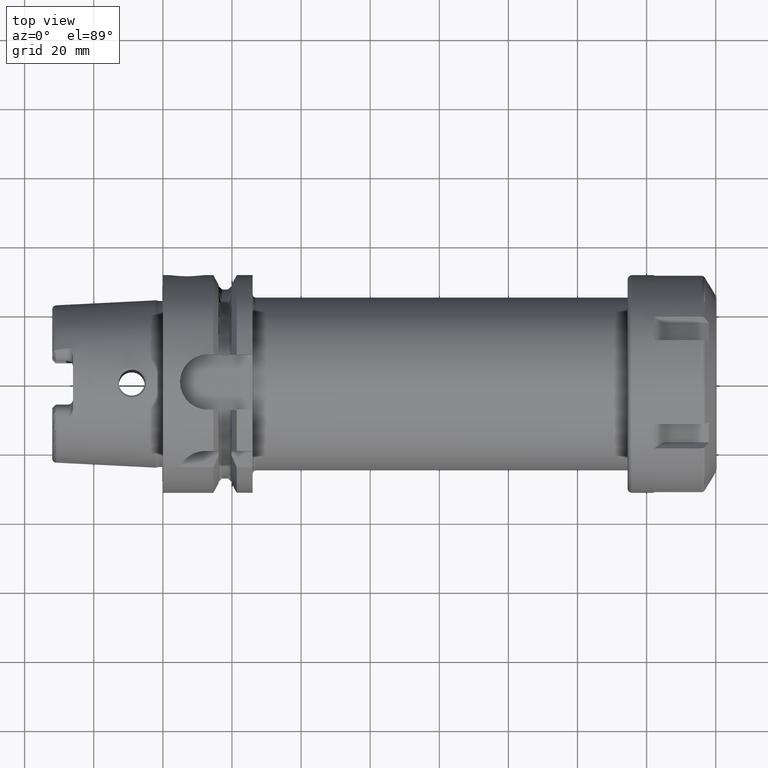
[diagram: clean part render]
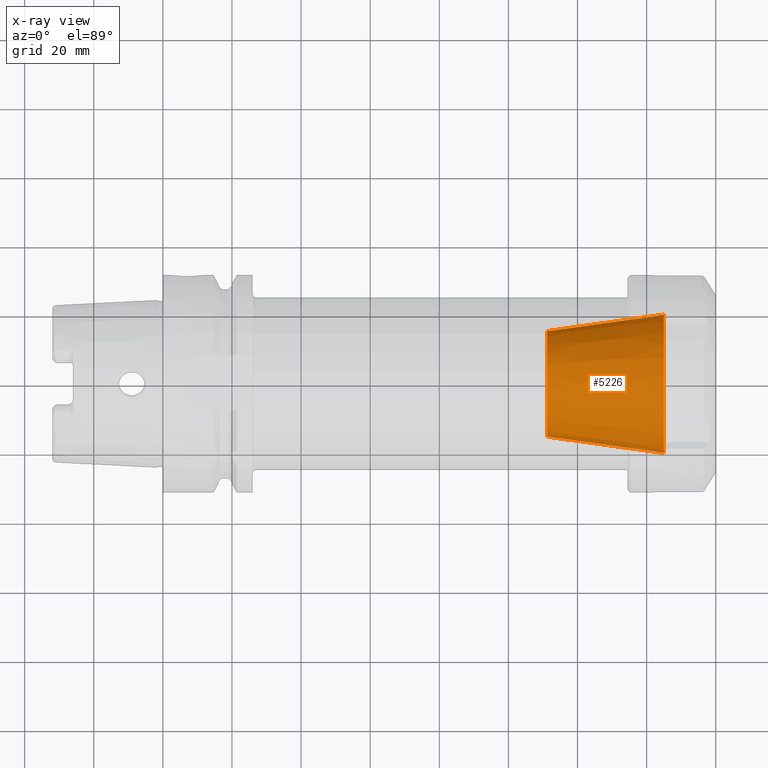
[diagram: x-ray — body ghosted, one internal face saturated and labeled with its STEP entity id]
A machine part, top view, then the same camera in x-ray: the body is ghosted and one INTERNAL B-rep face — a face not visible from any outside direction — is saturated and labeled: STEP entity #5226.
In plain terms, the highlighted conical surface has half-angle 8 deg.
Its self-contained STEP definition (entity closure, byte-faithful):
#1994=CARTESIAN_POINT('',(1.45E2,0.E0,0.E0));
#1995=DIRECTION('',(1.E0,0.E0,0.E0));
#1996=DIRECTION('',(0.E0,1.E0,0.E0));
#1997=AXIS2_PLACEMENT_3D('',#1994,#1995,#1996);
#2004=DIRECTION('',(-9.902680687416E-1,1.391731009601E-1,0.E0));
#2005=VECTOR('',#2004,3.413015853806E1);
#2006=CARTESIAN_POINT('',(1.45E2,-2.E1,0.E0));
#2007=LINE('',#2006,#2005);
#2008=DIRECTION('',(-9.902680687416E-1,-1.391731009601E-1,0.E0));
#2009=VECTOR('',#2008,3.413015853806E1);
#2010=CARTESIAN_POINT('',(1.45E2,2.E1,0.E0));
#2011=LINE('',#2010,#2009);
#2025=CARTESIAN_POINT('',(1.112019938187E2,0.E0,0.E0));
#2026=DIRECTION('',(1.E0,0.E0,0.E0));
#2027=DIRECTION('',(0.E0,1.E0,0.E0));
#2028=AXIS2_PLACEMENT_3D('',#2025,#2026,#2027);
#3048=CARTESIAN_POINT('',(1.112019938187E2,1.525E1,0.E0));
#3050=VERTEX_POINT('',#3048);
#3052=CARTESIAN_POINT('',(1.112019938187E2,-1.525E1,0.E0));
#3054=VERTEX_POINT('',#3052);
#3056=CARTESIAN_POINT('',(1.45E2,2.E1,0.E0));
#3057=CARTESIAN_POINT('',(1.45E2,-2.E1,0.E0));
#3058=VERTEX_POINT('',#3056);
#3059=VERTEX_POINT('',#3057);
#5212=CARTESIAN_POINT('',(1.281009969093E2,0.E0,0.E0));
#5213=DIRECTION('',(1.E0,0.E0,0.E0));
#5214=DIRECTION('',(0.E0,-1.E0,0.E0));
#5215=AXIS2_PLACEMENT_3D('',#5212,#5213,#5214);
#5216=CONICAL_SURFACE('',#5215,1.7625E1,8.E0);
#5217=ORIENTED_EDGE('',*,*,#5205,.F.);
#5219=ORIENTED_EDGE('',*,*,#5218,.T.);
#5221=ORIENTED_EDGE('',*,*,#5220,.T.);
#5223=ORIENTED_EDGE('',*,*,#5222,.F.);
#5224=EDGE_LOOP('',(#5217,#5219,#5221,#5223));
#5225=FACE_OUTER_BOUND('',#5224,.F.);
#5226=ADVANCED_FACE('',(#5225),#5216,.F.);
#1998=CIRCLE('',#1997,2.E1);
#2029=CIRCLE('',#2028,1.525E1);
#5205=EDGE_CURVE('',#3058,#3059,#1998,.T.);
#5218=EDGE_CURVE('',#3058,#3050,#2011,.T.);
#5220=EDGE_CURVE('',#3050,#3054,#2029,.T.);
#5222=EDGE_CURVE('',#3059,#3054,#2007,.T.);